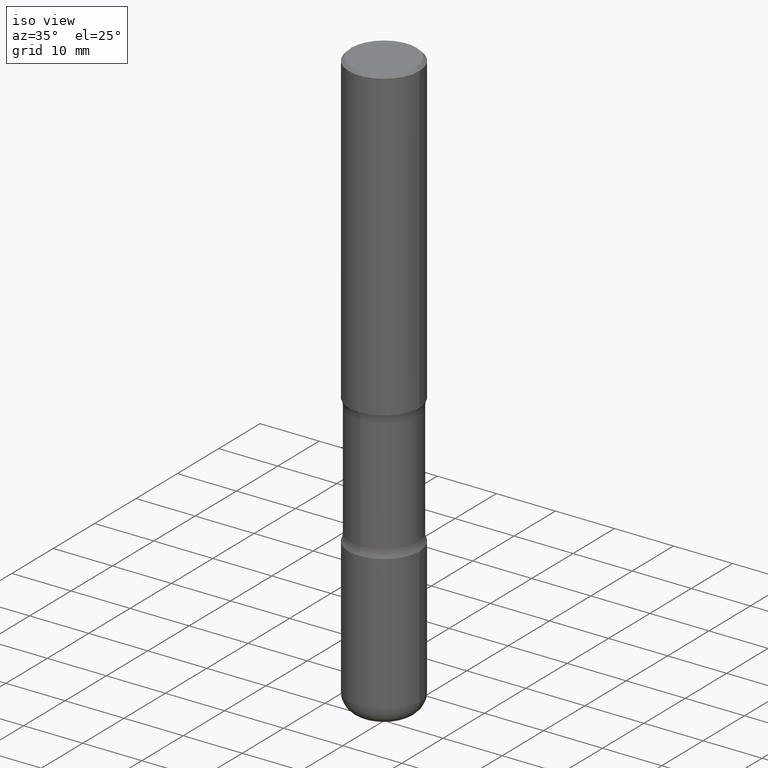
[diagram: clean part render]
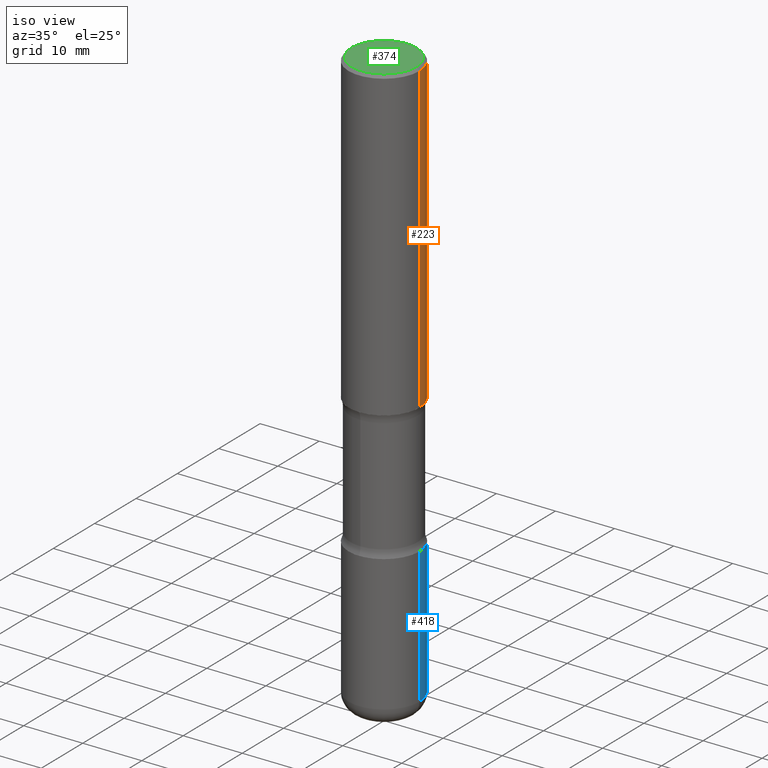
[diagram: same view with three faces highlighted in distinct colors, each labeled with its STEP entity id]
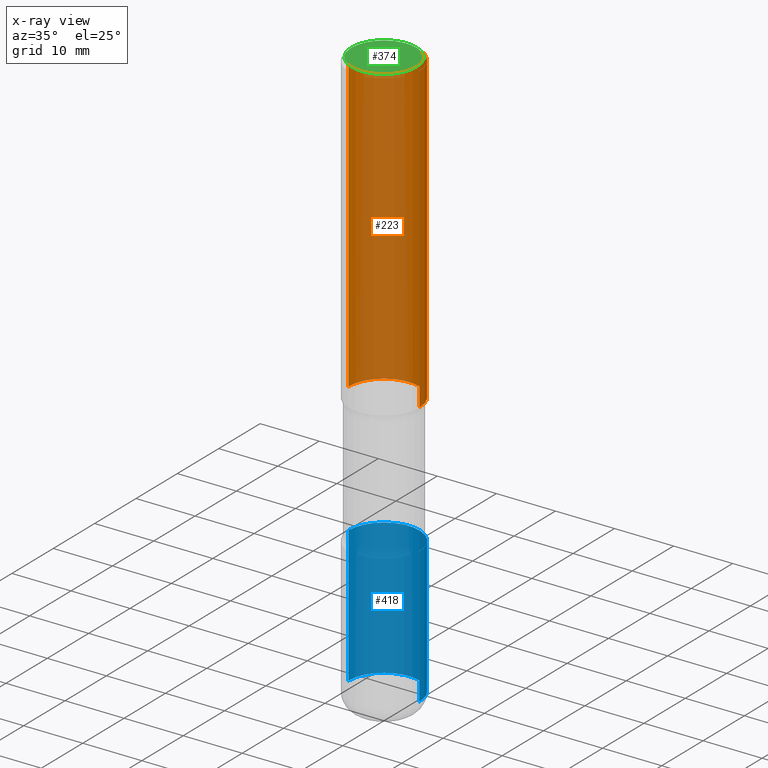
[diagram: x-ray of the same camera — body ghosted, the three highlighted faces saturated]
A machine part, iso view with three faces highlighted in distinct colors.
The next image is the same camera in x-ray (body ghosted, the three faces saturated) — at least one of them is partly hidden behind the body in this view.
Their STEP definitions:

[orange] entity #223 — the highlighted cylindrical surface (partial cylindrical patch) has radius 5.9995 mm, axis along (-0, 0, 1).
#18 = EDGE_CURVE ( 'NONE', #63, #54, #206, .T. ) ;
#25 = CARTESIAN_POINT ( 'NONE',  ( 0.000000000000000000, 0.000000000000000000, 0.000000000000000000 ) ) ;
#54 = VERTEX_POINT ( 'NONE', #249 ) ;
#63 = VERTEX_POINT ( 'NONE', #367 ) ;
#89 = DIRECTION ( 'NONE',  ( 1.000000000000000000, -6.982962677686269077E-15, 0.000000000000000000 ) ) ;
#111 = ORIENTED_EDGE ( 'NONE', *, *, #289, .F. ) ;
#112 = ORIENTED_EDGE ( 'NONE', *, *, #554, .F. ) ;
#126 = CARTESIAN_POINT ( 'NONE',  ( 5.006363740022212241E-29, -7.147760596879688202E-15, -2.047200000000000131 ) ) ;
#174 = EDGE_LOOP ( 'NONE', ( #452, #345, #111, #112 ) ) ;
#186 = CARTESIAN_POINT ( 'NONE',  ( 0.2361999999999998823, -1.690279253850498179E-15, -0.02000000000000006981 ) ) ;
#187 = VERTEX_POINT ( 'NONE', #186 ) ;
#198 = CARTESIAN_POINT ( 'NONE',  ( 0.2362000000000001321, -8.797136381349186305E-15, -2.047200000000000131 ) ) ;
#206 = LINE ( 'NONE', #557, #485 ) ;
#213 = AXIS2_PLACEMENT_3D ( 'NONE', #347, #468, #258 ) ;
#223 = ADVANCED_FACE ( 'NONE', ( #414 ), #372, .T. ) ;
#249 = CARTESIAN_POINT ( 'NONE',  ( -0.2361999999999998823, 1.579546157692632438E-15, -0.02000000000000006981 ) ) ;
#255 = DIRECTION ( 'NONE',  ( -2.445468806185136877E-29, 3.491481338843145188E-15, 1.000000000000000000 ) ) ;
#258 = DIRECTION ( 'NONE',  ( 1.000000000000000000, -6.982962677686267499E-15, 0.000000000000000000 ) ) ;
#279 = EDGE_CURVE ( 'NONE', #314, #63, #364, .T. ) ;
#289 = EDGE_CURVE ( 'NONE', #187, #54, #461, .T. ) ;
#303 = CARTESIAN_POINT ( 'NONE',  ( 0.2361999999999999933, -1.649375784469496131E-15, 1.151752954443000088E-29 ) ) ;
#305 = AXIS2_PLACEMENT_3D ( 'NONE', #126, #511, #89 ) ;
#314 = VERTEX_POINT ( 'NONE', #198 ) ;
#345 = ORIENTED_EDGE ( 'NONE', *, *, #18, .T. ) ;
#347 = CARTESIAN_POINT ( 'NONE',  ( 4.890937612370289799E-31, -6.982962677686315028E-17, -0.02000000000000006981 ) ) ;
#364 = CIRCLE ( 'NONE', #305, 0.2362000000000001321 ) ;
#367 = CARTESIAN_POINT ( 'NONE',  ( -0.2362000000000001598, -1.930493169962915017E-15, -2.047200000000000131 ) ) ;
#372 = CYLINDRICAL_SURFACE ( 'NONE', #528, 0.2361999999999999933 ) ;
#378 = LINE ( 'NONE', #303, #500 ) ;
#389 = DIRECTION ( 'NONE',  ( -2.445468806185136877E-29, 3.491481338843145188E-15, 1.000000000000000000 ) ) ;
#414 = FACE_OUTER_BOUND ( 'NONE', #174, .T. ) ;
#420 = DIRECTION ( 'NONE',  ( -2.445468806185136597E-29, 3.491481338843145583E-15, 1.000000000000000000 ) ) ;
#452 = ORIENTED_EDGE ( 'NONE', *, *, #279, .T. ) ;
#461 = CIRCLE ( 'NONE', #213, 0.2361999999999998823 ) ;
#468 = DIRECTION ( 'NONE',  ( -2.445468806185136597E-29, 3.491481338843145583E-15, 1.000000000000000000 ) ) ;
#485 = VECTOR ( 'NONE', #389, 39.37007874015748143 ) ;
#500 = VECTOR ( 'NONE', #255, 39.37007874015748143 ) ;
#511 = DIRECTION ( 'NONE',  ( -2.445468806185136597E-29, 3.491481338843145583E-15, 1.000000000000000000 ) ) ;
#528 = AXIS2_PLACEMENT_3D ( 'NONE', #25, #420, #540 ) ;
#540 = DIRECTION ( 'NONE',  ( 1.000000000000000000, -6.982962677686266711E-15, 4.876176775795936353E-29 ) ) ;
#554 = EDGE_CURVE ( 'NONE', #314, #187, #378, .T. ) ;
#557 = CARTESIAN_POINT ( 'NONE',  ( -0.2361999999999999933, 1.678301941865356591E-15, -1.161852468318208757E-29 ) ) ;

[blue] entity #418 — the highlighted cylindrical surface (partial cylindrical patch) has radius 5.9995 mm, axis along (-0, 0, 1).
#3 = AXIS2_PLACEMENT_3D ( 'NONE', #495, #107, #236 ) ;
#37 = EDGE_CURVE ( 'NONE', #45, #281, #348, .T. ) ;
#45 = VERTEX_POINT ( 'NONE', #478 ) ;
#70 = CIRCLE ( 'NONE', #124, 0.2362000000000002153 ) ;
#95 = EDGE_LOOP ( 'NONE', ( #110, #412, #369, #262 ) ) ;
#107 = DIRECTION ( 'NONE',  ( -2.445468806185136597E-29, 3.491481338843145583E-15, 1.000000000000000000 ) ) ;
#110 = ORIENTED_EDGE ( 'NONE', *, *, #472, .T. ) ;
#124 = AXIS2_PLACEMENT_3D ( 'NONE', #462, #547, #413 ) ;
#151 = CARTESIAN_POINT ( 'NONE',  ( 0.2362000000000001598, -1.649375784469497314E-15, 1.151752954443000929E-29 ) ) ;
#165 = DIRECTION ( 'NONE',  ( -2.445468806185136877E-29, 3.491481338843145188E-15, 1.000000000000000000 ) ) ;
#169 = CARTESIAN_POINT ( 'NONE',  ( -0.2362000000000001321, -1.007454796688149554E-14, -2.913400000000000212 ) ) ;
#183 = FACE_OUTER_BOUND ( 'NONE', #95, .T. ) ;
#190 = VERTEX_POINT ( 'NONE', #217 ) ;
#196 = AXIS2_PLACEMENT_3D ( 'NONE', #510, #473, #294 ) ;
#217 = CARTESIAN_POINT ( 'NONE',  ( 0.2362000000000001321, -1.182145751705511899E-14, -2.913400000000000212 ) ) ;
#236 = DIRECTION ( 'NONE',  ( 1.000000000000000000, -6.982962677686266711E-15, 4.876176775795936353E-29 ) ) ;
#238 = DIRECTION ( 'NONE',  ( -2.445468806185136877E-29, 3.491481338843145188E-15, 1.000000000000000000 ) ) ;
#262 = ORIENTED_EDGE ( 'NONE', *, *, #491, .F. ) ;
#276 = VECTOR ( 'NONE', #238, 39.37007874015748143 ) ;
#281 = VERTEX_POINT ( 'NONE', #169 ) ;
#294 = DIRECTION ( 'NONE',  ( 1.000000000000000000, -6.982962677686269077E-15, 0.000000000000000000 ) ) ;
#297 = CIRCLE ( 'NONE', #196, 0.2362000000000001321 ) ;
#320 = CYLINDRICAL_SURFACE ( 'NONE', #3, 0.2362000000000001598 ) ;
#348 = LINE ( 'NONE', #438, #404 ) ;
#369 = ORIENTED_EDGE ( 'NONE', *, *, #512, .F. ) ;
#404 = VECTOR ( 'NONE', #165, 39.37007874015748143 ) ;
#410 = LINE ( 'NONE', #151, #276 ) ;
#412 = ORIENTED_EDGE ( 'NONE', *, *, #37, .T. ) ;
#413 = DIRECTION ( 'NONE',  ( 1.000000000000000000, -6.982962677686266711E-15, 0.000000000000000000 ) ) ;
#418 = ADVANCED_FACE ( 'NONE', ( #183 ), #320, .T. ) ;
#419 = CARTESIAN_POINT ( 'NONE',  ( 0.2362000000000002153, -1.498299386937758423E-14, -3.818899999999998851 ) ) ;
#438 = CARTESIAN_POINT ( 'NONE',  ( -0.2362000000000001598, 1.678301941865357775E-15, -1.161852468318209598E-29 ) ) ;
#462 = CARTESIAN_POINT ( 'NONE',  ( 9.339000823940415305E-29, -1.333361808490808613E-14, -3.818899999999998851 ) ) ;
#472 = EDGE_CURVE ( 'NONE', #497, #45, #70, .T. ) ;
#473 = DIRECTION ( 'NONE',  ( -2.445468806185136597E-29, 3.491481338843145583E-15, 1.000000000000000000 ) ) ;
#478 = CARTESIAN_POINT ( 'NONE',  ( -0.2362000000000002153, -1.165531614304272658E-14, -3.818899999999998851 ) ) ;
#491 = EDGE_CURVE ( 'NONE', #497, #190, #410, .T. ) ;
#495 = CARTESIAN_POINT ( 'NONE',  ( 0.000000000000000000, 0.000000000000000000, 0.000000000000000000 ) ) ;
#497 = VERTEX_POINT ( 'NONE', #419 ) ;
#510 = CARTESIAN_POINT ( 'NONE',  ( 7.124628819939777829E-29, -1.017208173258562247E-14, -2.913400000000000212 ) ) ;
#512 = EDGE_CURVE ( 'NONE', #190, #281, #297, .T. ) ;
#547 = DIRECTION ( 'NONE',  ( -2.445468806185136597E-29, 3.491481338843145583E-15, 1.000000000000000000 ) ) ;

[green] entity #374 — the highlighted planar face has unit normal (0, -0, -1).
#2 = CIRCLE ( 'NONE', #140, 0.2161999999999998368 ) ;
#35 = CARTESIAN_POINT ( 'NONE',  ( -1.043851414335219820E-46, 1.490343170380447200E-32, 4.268512490100411279E-18 ) ) ;
#40 = CARTESIAN_POINT ( 'NONE',  ( 1.509716530915769534E-15, 0.2161999999999998368, -7.527240092128373149E-16 ) ) ;
#77 = PLANE ( 'NONE',  #226 ) ;
#140 = AXIS2_PLACEMENT_3D ( 'NONE', #35, #160, #204 ) ;
#160 = DIRECTION ( 'NONE',  ( -2.445468806185136597E-29, 3.491481338843145583E-15, 1.000000000000000000 ) ) ;
#201 = DIRECTION ( 'NONE',  ( 2.438088387897960049E-29, -3.491481338843145188E-15, -1.000000000000000000 ) ) ;
#204 = DIRECTION ( 'NONE',  ( 1.000000000000000000, -6.982962677686266711E-15, 4.876217060660159599E-29 ) ) ;
#226 = AXIS2_PLACEMENT_3D ( 'NONE', #40, #201, #424 ) ;
#248 = CARTESIAN_POINT ( 'NONE',  ( 0.2161999999999998368, -1.586759460484351002E-15, 4.268512490111238857E-18 ) ) ;
#250 = EDGE_CURVE ( 'NONE', #332, #308, #2, .T. ) ;
#271 = EDGE_CURVE ( 'NONE', #308, #332, #392, .T. ) ;
#288 = FACE_OUTER_BOUND ( 'NONE', #494, .T. ) ;
#296 = DIRECTION ( 'NONE',  ( 1.000000000000000000, -6.982962677686266711E-15, 4.876217060660159599E-29 ) ) ;
#308 = VERTEX_POINT ( 'NONE', #248 ) ;
#332 = VERTEX_POINT ( 'NONE', #552 ) ;
#374 = ADVANCED_FACE ( 'NONE', ( #288 ), #77, .F. ) ;
#392 = CIRCLE ( 'NONE', #509, 0.2161999999999998368 ) ;
#403 = ORIENTED_EDGE ( 'NONE', *, *, #271, .T. ) ;
#424 = DIRECTION ( 'NONE',  ( -1.000000000000000000, 6.982962677686265922E-15, -4.876176775795935793E-29 ) ) ;
#477 = DIRECTION ( 'NONE',  ( -2.445468806185136597E-29, 3.491481338843145583E-15, 1.000000000000000000 ) ) ;
#480 = CARTESIAN_POINT ( 'NONE',  ( -1.043851414335219820E-46, 1.490343170380447200E-32, 4.268512490100411279E-18 ) ) ;
#490 = ORIENTED_EDGE ( 'NONE', *, *, #250, .T. ) ;
#494 = EDGE_LOOP ( 'NONE', ( #490, #403 ) ) ;
#509 = AXIS2_PLACEMENT_3D ( 'NONE', #480, #477, #296 ) ;
#552 = CARTESIAN_POINT ( 'NONE',  ( -0.2161999999999998368, 1.544631344304201183E-15, 4.268512490089730842E-18 ) ) ;